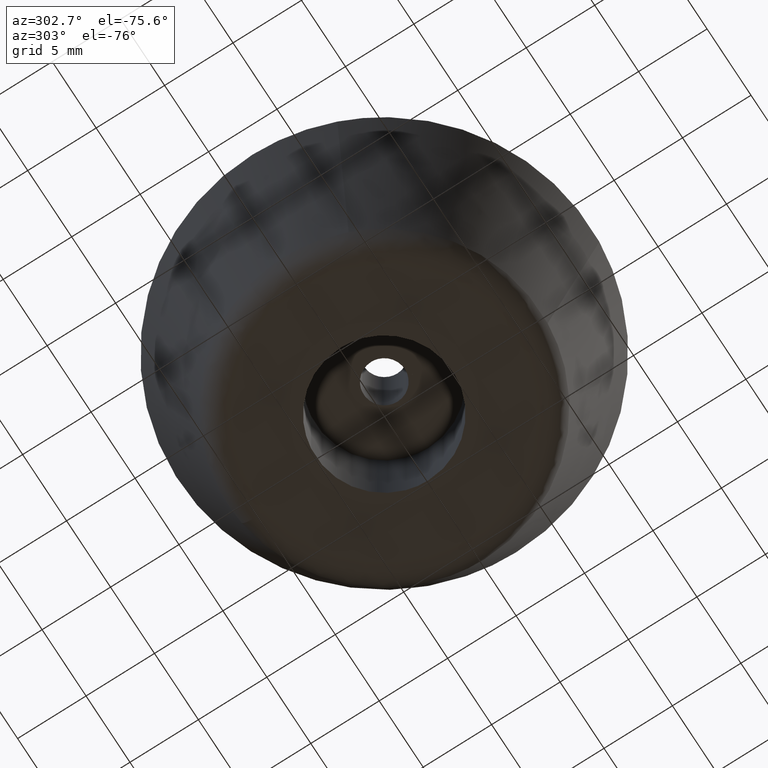
[diagram: clean part render]
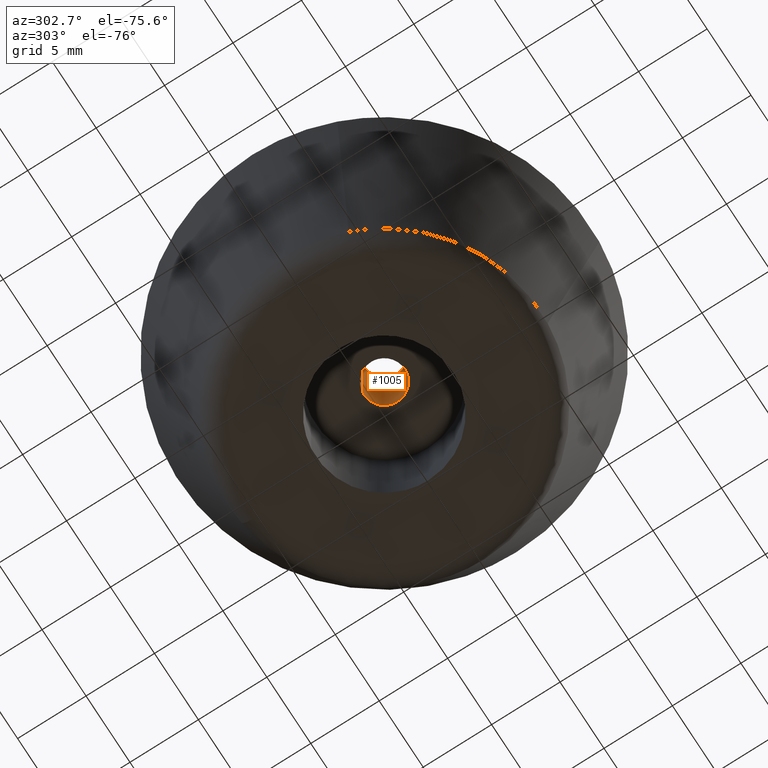
[diagram: same view with one face highlighted and labeled with its STEP entity id]
A machine part, auxiliary view. The second image highlights one B-rep face of the part: STEP entity #1005.
In plain terms, the highlighted face is a freeform B-spline surface patch.
Its self-contained STEP definition (entity closure, byte-faithful):
#903=CARTESIAN_POINT('',(-0.177051351985138,1.489514289545500,15.175000000000002));
#904=CARTESIAN_POINT('',(-0.134422092956966,1.494581423172908,15.175000000000006));
#905=CARTESIAN_POINT('',(-0.091572809302285,1.497202197632800,15.175000000000001));
#906=CARTESIAN_POINT('',(1.405629388330515,1.588775006935085,15.175000000000001));
#907=CARTESIAN_POINT('',(1.497202197632800,0.091572809302285,15.175000000000001));
#908=CARTESIAN_POINT('',(1.588775006935085,-1.405629388330515,15.175000000000001));
#909=CARTESIAN_POINT('',(0.091572809302285,-1.497202197632800,15.175000000000001));
#910=CARTESIAN_POINT('',(-0.177051351985138,1.489514289545500,7.820624999999898));
#911=CARTESIAN_POINT('',(-0.134422092956966,1.494581423172908,7.820624999999896));
#912=CARTESIAN_POINT('',(-0.091572809302285,1.497202197632800,7.820624999999897));
#913=CARTESIAN_POINT('',(1.405629388330515,1.588775006935085,7.820624999999897));
#914=CARTESIAN_POINT('',(1.497202197632800,0.091572809302285,7.820624999999897));
#915=CARTESIAN_POINT('',(1.588775006935085,-1.405629388330515,7.820624999999897));
#916=CARTESIAN_POINT('',(0.091572809302285,-1.497202197632800,7.820624999999897));
#924=(BOUNDED_SURFACE()B_SPLINE_SURFACE(2,1,((#903,#910),(#904,#911),(#905,#912),(#906,#913),(#907,#914),(#908,#915),(#909,#916)),.UNSPECIFIED.,.F.,.F.,.U.)B_SPLINE_SURFACE_WITH_KNOTS((3,2,2,3),(2,2),(3.078760800517997,3.141592653589793,4.712388980384690,6.283185307179586),(0.0,7.354375000000109),.UNSPECIFIED.)GEOMETRIC_REPRESENTATION_ITEM()RATIONAL_B_SPLINE_SURFACE(((0.977505800795127,0.977505800795127),(0.988284271247462,0.988284271247462),(1.0,1.0),(0.707106781186548,0.707106781186548),(1.0,1.0),(0.707106781186548,0.707106781186548),(1.0,1.0)))REPRESENTATION_ITEM('')SURFACE());
#925=CARTESIAN_POINT('',(-0.177051351996901,1.489514289544101,15.0));
#926=VERTEX_POINT('',#925);
#927=CARTESIAN_POINT('',(1.500000000000000,0.0,15.0));
#928=VERTEX_POINT('',#927);
#929=CARTESIAN_POINT('',(-0.177051351996901,1.489514289544102,14.999999999999996));
#930=CARTESIAN_POINT('',(-0.088836179489753,1.500000000000000,15.0));
#931=CARTESIAN_POINT('',(0.0,1.500000000000000,15.0));
#932=CARTESIAN_POINT('',(1.500000000000000,1.500000000000000,14.999999999999995));
#933=CARTESIAN_POINT('',(1.500000000000000,0.0,15.0));
#941=(BOUNDED_CURVE()B_SPLINE_CURVE(2,(#929,#930,#931,#932,#933),.UNSPECIFIED.,.F.,.U.)B_SPLINE_CURVE_WITH_KNOTS((3,2,3),(0.229562473512975,0.250000000000000,0.500000000000000),.UNSPECIFIED.)CURVE()GEOMETRIC_REPRESENTATION_ITEM()RATIONAL_B_SPLINE_CURVE((0.956026754182654,0.976055948330520,1.0,0.707106781186548,1.0))REPRESENTATION_ITEM(''));
#942=EDGE_CURVE('',#926,#928,#941,.T.);
#943=ORIENTED_EDGE('',*,*,#942,.F.);
#944=CARTESIAN_POINT('',(-0.177051351996901,1.489514289544101,7.999999999999901));
#945=VERTEX_POINT('',#944);
#946=CARTESIAN_POINT('',(-0.177051351996901,1.489514289544101,15.0));
#947=CARTESIAN_POINT('',(-0.177051351996901,1.489514289544101,7.999999999999901));
#948=QUASI_UNIFORM_CURVE('',1,(#946,#947),.UNSPECIFIED.,.F.,.U.);
#949=EDGE_CURVE('',#926,#945,#948,.T.);
#950=ORIENTED_EDGE('',*,*,#949,.T.);
#951=CARTESIAN_POINT('',(1.500000000000000,0.0,7.999999999999900));
#952=VERTEX_POINT('',#951);
#953=CARTESIAN_POINT('',(-0.177051351996901,1.489514289544102,7.999999999999901));
#954=CARTESIAN_POINT('',(-0.088836179489753,1.500000000000000,7.999999999999900));
#955=CARTESIAN_POINT('',(0.0,1.500000000000000,7.999999999999900));
#956=CARTESIAN_POINT('',(1.500000000000000,1.500000000000000,7.999999999999901));
#957=CARTESIAN_POINT('',(1.500000000000000,0.0,7.999999999999900));
#965=(BOUNDED_CURVE()B_SPLINE_CURVE(2,(#953,#954,#955,#956,#957),.UNSPECIFIED.,.F.,.U.)B_SPLINE_CURVE_WITH_KNOTS((3,2,3),(0.229562473512975,0.250000000000000,0.500000000000000),.UNSPECIFIED.)CURVE()GEOMETRIC_REPRESENTATION_ITEM()RATIONAL_B_SPLINE_CURVE((0.956026754182654,0.976055948330520,1.0,0.707106781186548,1.0))REPRESENTATION_ITEM(''));
#966=EDGE_CURVE('',#945,#952,#965,.T.);
#967=ORIENTED_EDGE('',*,*,#966,.T.);
#968=CARTESIAN_POINT('',(0.091572809380306,-1.497202197628028,7.999999999999900));
#969=VERTEX_POINT('',#968);
#970=CARTESIAN_POINT('',(1.500000000000000,0.0,7.999999999999900));
#971=CARTESIAN_POINT('',(1.500000000000000,-1.411059100211211,7.999999999999900));
#972=CARTESIAN_POINT('',(0.091572809380306,-1.497202197628028,7.999999999999900));
#980=(BOUNDED_CURVE()B_SPLINE_CURVE(2,(#970,#971,#972),.UNSPECIFIED.,.F.,.U.)B_SPLINE_CURVE_WITH_KNOTS((3,3),(0.500000000000000,0.739332962223986),.UNSPECIFIED.)CURVE()GEOMETRIC_REPRESENTATION_ITEM()RATIONAL_B_SPLINE_CURVE((1.0,0.719603993304233,0.976072041634662))REPRESENTATION_ITEM(''));
#981=EDGE_CURVE('',#952,#969,#980,.T.);
#982=ORIENTED_EDGE('',*,*,#981,.T.);
#983=CARTESIAN_POINT('',(0.091572809380306,-1.497202197628028,15.0));
#984=VERTEX_POINT('',#983);
#985=CARTESIAN_POINT('',(0.091572809380306,-1.497202197628028,15.0));
#986=CARTESIAN_POINT('',(0.091572809380306,-1.497202197628028,7.999999999999900));
#987=QUASI_UNIFORM_CURVE('',1,(#985,#986),.UNSPECIFIED.,.F.,.U.);
#988=EDGE_CURVE('',#984,#969,#987,.T.);
#989=ORIENTED_EDGE('',*,*,#988,.F.);
#990=CARTESIAN_POINT('',(1.500000000000000,0.0,15.0));
#991=CARTESIAN_POINT('',(1.500000000000000,-1.411059100211211,14.999999999999998));
#992=CARTESIAN_POINT('',(0.091572809380306,-1.497202197628028,15.0));
#1000=(BOUNDED_CURVE()B_SPLINE_CURVE(2,(#990,#991,#992),.UNSPECIFIED.,.F.,.U.)B_SPLINE_CURVE_WITH_KNOTS((3,3),(0.500000000000000,0.739332962223986),.UNSPECIFIED.)CURVE()GEOMETRIC_REPRESENTATION_ITEM()RATIONAL_B_SPLINE_CURVE((1.0,0.719603993304233,0.976072041634662))REPRESENTATION_ITEM(''));
#1001=EDGE_CURVE('',#928,#984,#1000,.T.);
#1002=ORIENTED_EDGE('',*,*,#1001,.F.);
#1003=EDGE_LOOP('',(#943,#950,#967,#982,#989,#1002));
#1004=FACE_OUTER_BOUND('',#1003,.T.);
#1005=ADVANCED_FACE('',(#1004),#924,.F.);